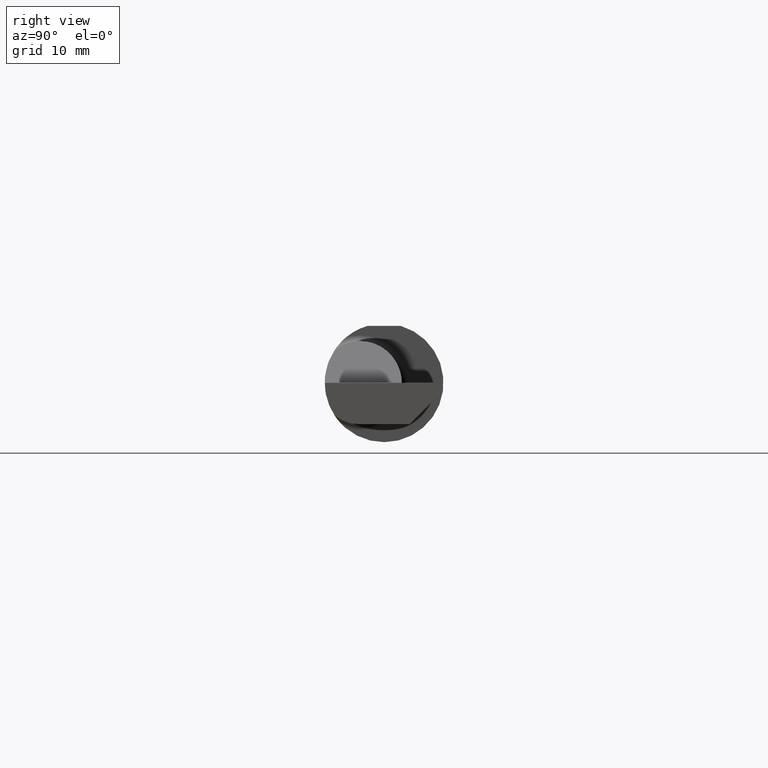
[diagram: clean part render]
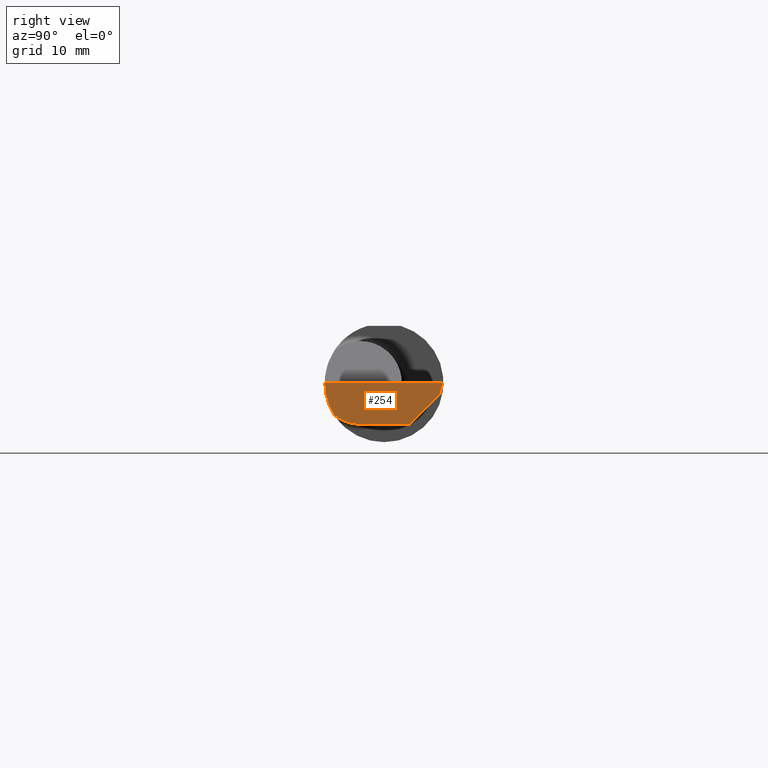
[diagram: same view with one face highlighted and labeled with its STEP entity id]
A machine part, right view. The second image highlights one B-rep face of the part: STEP entity #254.
In plain terms, the highlighted planar face has unit normal (-0.999, 0.0349, 0.0262).
Its self-contained STEP definition (entity closure, byte-faithful):
#22 = VERTEX_POINT ( 'NONE', #52 ) ;
#24 = CARTESIAN_POINT ( 'NONE',  ( 2.998364291748493393, 0.2348243371481683328, -0.04599999999999999922 ) ) ;
#32 = EDGE_CURVE ( 'NONE', #738, #153, #733, .T. ) ;
#34 = CARTESIAN_POINT ( 'NONE',  ( 2.977412177158956563, -0.2496672875357696664, -0.1999314649951114686 ) ) ;
#47 = CARTESIAN_POINT ( 'NONE',  ( 2.990479469570817006, 0.1058243371481679268, -0.1749999999999999889 ) ) ;
#52 = CARTESIAN_POINT ( 'NONE',  ( 2.982644377562602589, -0.2498499999999999610, 1.813681607540488003E-17 ) ) ;
#65 = CARTESIAN_POINT ( 'NONE',  ( 2.980479240051444378, -0.2080850024789291652, -0.1382955322609665250 ) ) ;
#83 = ORIENTED_EDGE ( 'NONE', *, *, #492, .F. ) ;
#86 = VERTEX_POINT ( 'NONE', #65 ) ;
#98 = CARTESIAN_POINT ( 'NONE',  ( 2.980602402804240381, -0.2354324170447328890, -0.09714751587400699551 ) ) ;
#102 = ORIENTED_EDGE ( 'NONE', *, *, #500, .F. ) ;
#143 = CARTESIAN_POINT ( 'NONE',  ( 2.980479240051444378, -0.2080850024789291652, -0.1382955322609665250 ) ) ;
#149 = VECTOR ( 'NONE', #265, 39.37007874015748143 ) ;
#153 = VERTEX_POINT ( 'NONE', #702 ) ;
#193 =( BOUNDED_CURVE ( )  B_SPLINE_CURVE ( 3, ( #143, #98, #689, #327 ),
 .UNSPECIFIED., .F., .T. ) 
 B_SPLINE_CURVE_WITH_KNOTS ( ( 4, 4 ),
 ( 0.05713034791898994463, 0.6418805321923491958 ),
 .UNSPECIFIED. ) 
 CURVE ( )  GEOMETRIC_REPRESENTATION_ITEM ( )  RATIONAL_B_SPLINE_CURVE ( ( 1.000000000000000000, 0.9717080070095445166, 0.9717080070095445166, 1.000000000000000000 ) ) 
 REPRESENTATION_ITEM ( '' )  );
#204 = DIRECTION ( 'NONE',  ( -0.9990483607430196145, 0.03488753751661385211, 0.02617694830785935456 ) ) ;
#207 = EDGE_CURVE ( 'NONE', #86, #219, #193, .T. ) ;
#208 = CARTESIAN_POINT ( 'NONE',  ( 2.982660284539054629, -0.2493944837933358694, 2.123502703737254632E-18 ) ) ;
#219 = VERTEX_POINT ( 'NONE', #322 ) ;
#229 = LINE ( 'NONE', #34, #509 ) ;
#241 = VERTEX_POINT ( 'NONE', #619 ) ;
#254 = ADVANCED_FACE ( 'NONE', ( #749 ), #440, .F. ) ;
#265 = DIRECTION ( 'NONE',  ( 0.03489949670249940794, 0.9993908270190957621, -4.452728370532699971E-18 ) ) ;
#268 = DIRECTION ( 'NONE',  ( -0.03432699337968036363, -0.2586665114180216052, -0.9653565628286482347 ) ) ;
#322 = CARTESIAN_POINT ( 'NONE',  ( 2.982632426700502215, -0.2498495826666993769, -0.0004566631977452191267 ) ) ;
#327 = CARTESIAN_POINT ( 'NONE',  ( 2.982632426700502215, -0.2498495826666993769, -0.0004566631977452191267 ) ) ;
#348 = CARTESIAN_POINT ( 'NONE',  ( 2.980931506555613453, -0.1771157075472509779, -0.1623092683844330475 ) ) ;
#377 = CARTESIAN_POINT ( 'NONE',  ( 2.994767799596354418, 0.2473327124642303587, -0.1999314649951115241 ) ) ;
#383 = EDGE_LOOP ( 'NONE', ( #401, #452, #102, #602, #83, #597, #425 ) ) ;
#392 = CARTESIAN_POINT ( 'NONE',  ( 2.998041052908566595, 0.2295359730721147906, -0.05128836407605352060 ) ) ;
#394 = DIRECTION ( 'NONE',  ( -0.04317993108637931121, -0.7064472710512011977, -0.7064472710511988662 ) ) ;
#401 = ORIENTED_EDGE ( 'NONE', *, *, #632, .T. ) ;
#403 = CARTESIAN_POINT ( 'NONE',  ( 2.980479240051444378, -0.2080850024789291652, -0.1382955322609665250 ) ) ;
#423 = DIRECTION ( 'NONE',  ( -0.03489949670249939406, -0.9993908270190957621, 2.445004146800612422E-16 ) ) ;
#425 = ORIENTED_EDGE ( 'NONE', *, *, #207, .F. ) ;
#426 =( BOUNDED_CURVE ( )  B_SPLINE_CURVE ( 3, ( #403, #348, #461, #464 ),
 .UNSPECIFIED., .F., .T. ) 
 B_SPLINE_CURVE_WITH_KNOTS ( ( 4, 4 ),
 ( 0.2675252011803429530, 0.9270880441442505004 ),
 .UNSPECIFIED. ) 
 CURVE ( )  GEOMETRIC_REPRESENTATION_ITEM ( )  RATIONAL_B_SPLINE_CURVE ( ( 1.000000000000000000, 0.9640754331822828371, 0.9640754331822828371, 1.000000000000000000 ) ) 
 REPRESENTATION_ITEM ( '' )  );
#440 = PLANE ( 'NONE',  #554 ) ;
#445 = DIRECTION ( 'NONE',  ( -0.03489949670249940100, -0.9993908270190957621, 0.000000000000000000 ) ) ;
#449 = CARTESIAN_POINT ( 'NONE',  ( 2.999793790066964672, 0.2455961323656265238, -0.005799112959718751882 ) ) ;
#452 = ORIENTED_EDGE ( 'NONE', *, *, #32, .F. ) ;
#461 = CARTESIAN_POINT ( 'NONE',  ( 2.981893741990786495, -0.1400387324517231025, -0.1750000000000000167 ) ) ;
#464 = CARTESIAN_POINT ( 'NONE',  ( 2.983262242683407006, -0.1008499999999999674, -0.1749999999999999889 ) ) ;
#475 = VECTOR ( 'NONE', #394, 39.37007874015748854 ) ;
#492 = EDGE_CURVE ( 'NONE', #22, #241, #673, .T. ) ;
#500 = EDGE_CURVE ( 'NONE', #548, #738, #517, .T. ) ;
#509 = VECTOR ( 'NONE', #654, 39.37007874015748854 ) ;
#517 = LINE ( 'NONE', #392, #475 ) ;
#548 = VERTEX_POINT ( 'NONE', #24 ) ;
#554 = AXIS2_PLACEMENT_3D ( 'NONE', #377, #204, #445 ) ;
#568 = VECTOR ( 'NONE', #423, 39.37007874015748854 ) ;
#574 = EDGE_CURVE ( 'NONE', #241, #548, #701, .T. ) ;
#597 = ORIENTED_EDGE ( 'NONE', *, *, #788, .F. ) ;
#602 = ORIENTED_EDGE ( 'NONE', *, *, #574, .F. ) ;
#619 = CARTESIAN_POINT ( 'NONE',  ( 3.000000000000000444, 0.2471499999999999531, -7.549931466865102584E-16 ) ) ;
#632 = EDGE_CURVE ( 'NONE', #86, #153, #426, .T. ) ;
#648 = VECTOR ( 'NONE', #268, 39.37007874015748854 ) ;
#654 = DIRECTION ( 'NONE',  ( 0.02616100201822768243, -0.0009135623211515309658, 0.9996573249755575929 ) ) ;
#673 = LINE ( 'NONE', #208, #149 ) ;
#689 = CARTESIAN_POINT ( 'NONE',  ( 2.981341028891338230, -0.2497592792593404665, -0.04986346618387292595 ) ) ;
#701 = LINE ( 'NONE', #449, #648 ) ;
#702 = CARTESIAN_POINT ( 'NONE',  ( 2.983262242683407006, -0.1008499999999999674, -0.1749999999999999889 ) ) ;
#733 = LINE ( 'NONE', #741, #568 ) ;
#738 = VERTEX_POINT ( 'NONE', #47 ) ;
#741 = CARTESIAN_POINT ( 'NONE',  ( 2.993019781838999194, 0.1785693626775286258, -0.1750000000000000444 ) ) ;
#749 = FACE_OUTER_BOUND ( 'NONE', #383, .T. ) ;
#788 = EDGE_CURVE ( 'NONE', #219, #22, #229, .T. ) ;